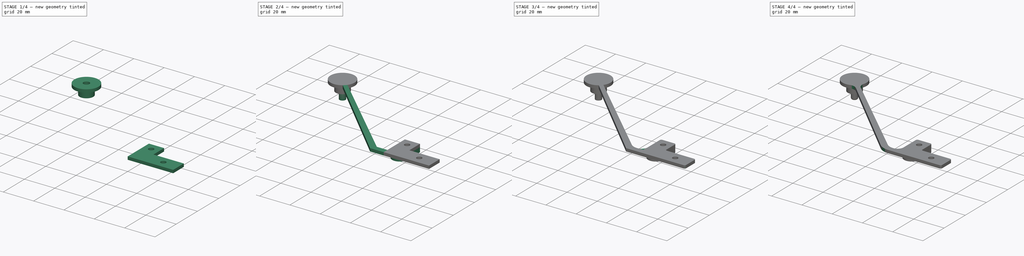
[diagram: build sequence overview — one tinted view per stage of 4, left to right]
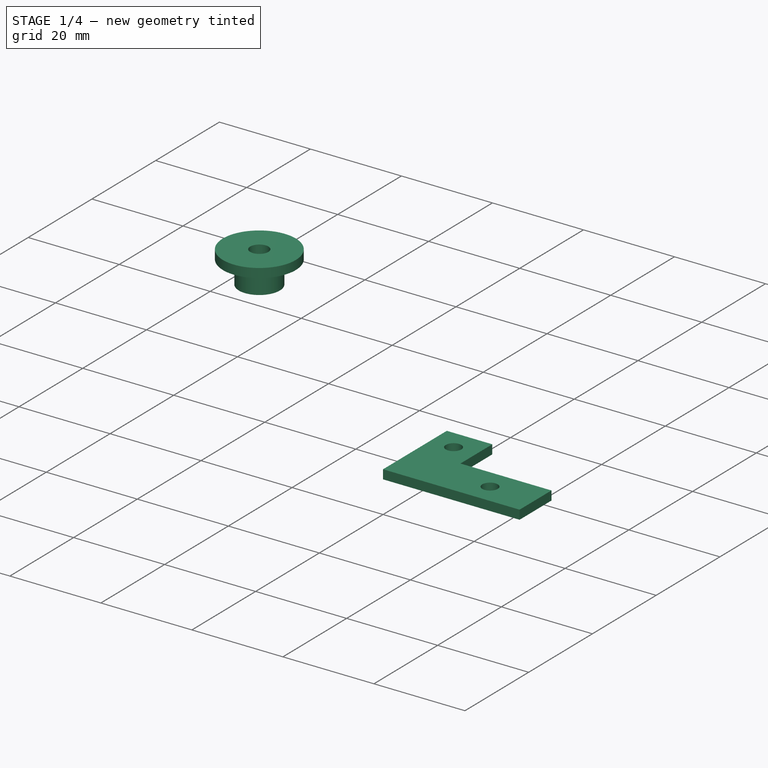
[diagram: stage 1 of 4 — iso view after this stage's code; geometry added in this stage tinted green]
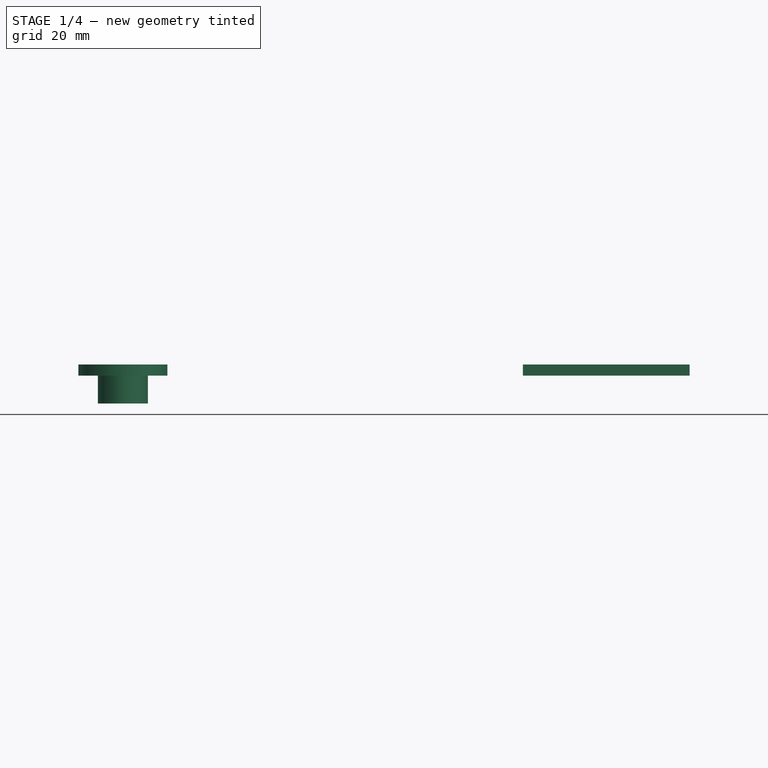
[diagram: stage 1 of 4 — front view after this stage's code; geometry added in this stage tinted green]
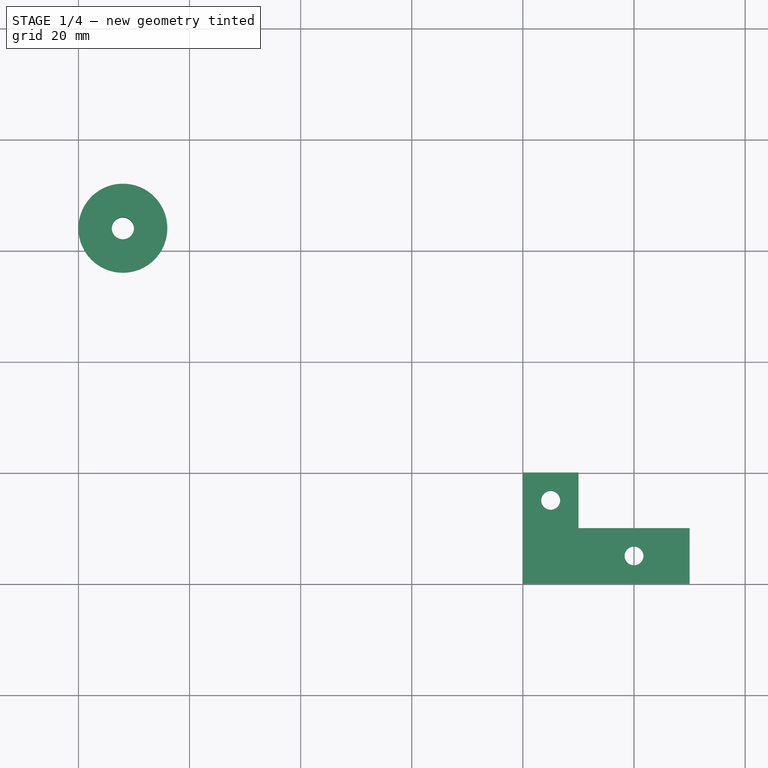
[diagram: stage 1 of 4 — top view after this stage's code; geometry added in this stage tinted green]
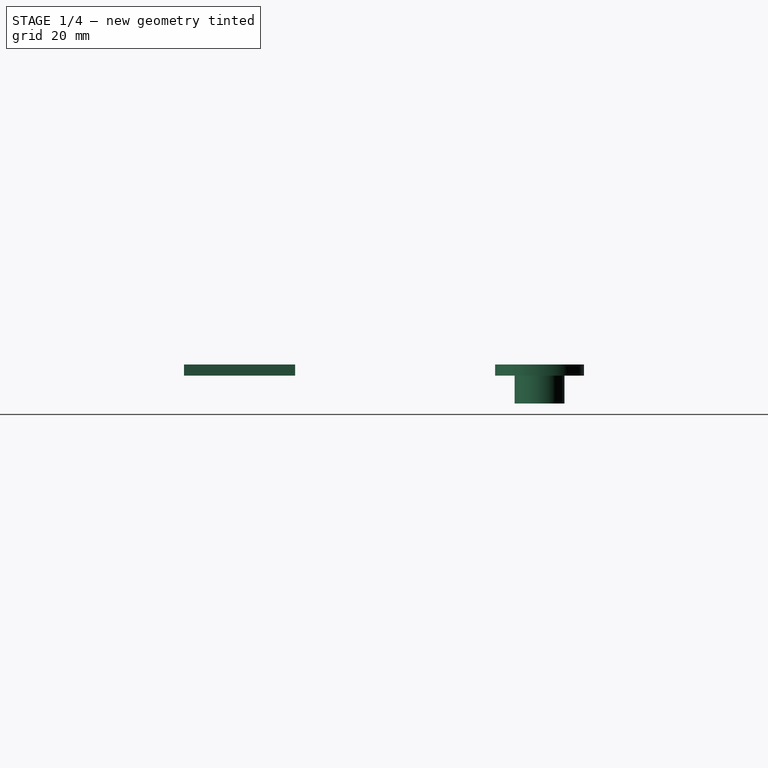
[diagram: stage 1 of 4 — right view after this stage's code; geometry added in this stage tinted green]
FCSTD DOCUMENT  (FreeCAD 0.21R33668 +26 (Git))
Label: Tensioner
License: All rights reserved
LicenseURL: http://en.wikipedia.org/wiki/All_rights_reserved
objects: PartDesign::Fillet×7, Sketcher::SketchObject×6, PartDesign::Pad×6, PartDesign::Body×2, App::Part×1
note: 34 computed .brp shape members not serialized (recipe doc carries the construction recipe); baked Part::Feature solids carry a one-line shape summary decoded from their .brp

FEATURE [Sketcher::SketchObject] Sketch
  FullyConstrained = false
  MapMode = 5
  Support = -> [XY_Plane001]
  sketch-geometry (8):
    g0: LineSegment StartX=0 StartY=0 StartZ=0 EndX=30 EndY=0 EndZ=0
    g1: LineSegment StartX=30 StartY=0 StartZ=0 EndX=30 EndY=10 EndZ=0
    g2: LineSegment StartX=0 StartY=20 StartZ=0 EndX=0 EndY=0 EndZ=0
    g3: LineSegment StartX=30 StartY=10 StartZ=0 EndX=10 EndY=10 EndZ=0
    g4: LineSegment StartX=10 StartY=10 StartZ=0 EndX=10 EndY=20 EndZ=0
    g5: LineSegment StartX=10 StartY=20 StartZ=0 EndX=0 EndY=20 EndZ=0
    g6: Circle CenterX=20 CenterY=5 CenterZ=0 NormalX=0 NormalY=0 NormalZ=1 AngleXU=0 Radius=1.7
    g7: Circle CenterX=5 CenterY=15 CenterZ=0 NormalX=0 NormalY=0 NormalZ=1 AngleXU=0 Radius=1.7
  constraints (23):
    c: Coincident(g0,g1)
    c: Coincident(g2,g0)
    c: Horizontal(g0)
    c: Vertical(g1)
    c: Vertical(g2)
    c: Coincident(g0,g-1)
    c: DistanceX(g-1,g0) = 30
    c: Coincident(g3,g1)
    c: Horizontal(g3)
    c: Coincident(g4,g3)
    c: Vertical(g4)
    c: Coincident(g5,g2)
    c: Horizontal(g5)
    c: DistanceY(g-1,g1) = 10
    c: DistanceY(g-1,g2) = 20
    c: Coincident(g4,g5)
    c: DistanceX(g-1,g6) = 20
    c: DistanceY(g-1,g6) = 5
    c: Radius(g6) = 1.7
    c: DistanceY(g-1,g7) = 15
    c: DistanceX(g-1,g7) = 5
    c: Radius(g7) = 1.7
    c: DistanceX(g-1,g4) = 10
FEATURE [PartDesign::Pad] Pad
  AllowMultiFace = false
  Direction = (1,1,1)
  Length = 2
  Length2 = 100
  Profile = -> Sketch
  Type = 0
FEATURE [PartDesign::Body] Pad004Body  label="Main"
  Group = -> [Sketch,Pad,Sketch001,Pad001,Sketch003,Pad003,Sketch004,Pad004,Fillet,Fillet001,Fillet002,Fillet003,Fillet004,Fillet005,Fillet006]
  Origin = -> Origin001
  Tip = -> Fillet006
FEATURE [Sketcher::SketchObject] Sketch005
  FullyConstrained = false
  MapMode = 5
  Support = -> [XY_Plane002]
  sketch-geometry (2):
    g0: Circle CenterX=-72 CenterY=64 CenterZ=0 NormalX=0 NormalY=0 NormalZ=1 AngleXU=0 Radius=8
    g1: Circle CenterX=-72 CenterY=64 CenterZ=0 NormalX=0 NormalY=0 NormalZ=1 AngleXU=0 Radius=2
  constraints (5):
    c: DistanceY(g-1,g0) = 64
    c: DistanceX(g0,g-1) = 72
    c: Coincident(g1,g0)
    c: Radius(g0) = 8
    c: Radius(g1) = 2
FEATURE [PartDesign::Pad] Pad005
  AllowMultiFace = false
  Direction = (1,1,1)
  Length = 2
  Length2 = 100
  Profile = -> Sketch005
  Type = 0
FEATURE [Sketcher::SketchObject] Sketch006
  ExternalGeometry = -> [Pad005]
  FullyConstrained = false
  MapMode = 5
  Placement = pos=(0,0,0) rot=(1,0,0;3.14159rad)
  Support = -> [Pad005]
  sketch-geometry (2):
    g0: Circle CenterX=-72 CenterY=-64 CenterZ=0 NormalX=0 NormalY=0 NormalZ=1 AngleXU=0 Radius=4.5
    g1: Circle CenterX=-72 CenterY=-64 CenterZ=0 NormalX=0 NormalY=0 NormalZ=1 AngleXU=0 Radius=2
  constraints (4):
    c: Coincident(g0,g-3)
    c: Radius(g0) = 4.5
    c: Coincident(g1,g0)
    c: Radius(g1) = 2
FEATURE [PartDesign::Pad] Pad006
  AllowMultiFace = false
  BaseFeature = -> Pad005
  Direction = (1,1,1)
  Length = 5
  Length2 = 100
  Profile = -> Sketch006
  Type = 0
FEATURE [PartDesign::Body] Body  label="Cover"
  Group = -> [Sketch005,Pad005,Sketch006,Pad006]
  Origin = -> Origin002
  Placement = pos=(0,0,-5) rot=(0,0,1;0rad)
  Tip = -> Pad006
FEATURE [App::Part] Part
  Group = -> [Pad004Body,Body]
  License = CC BY 3.0
  LicenseURL = http://creativecommons.org/licenses/by/3.0/
  Origin = -> Origin
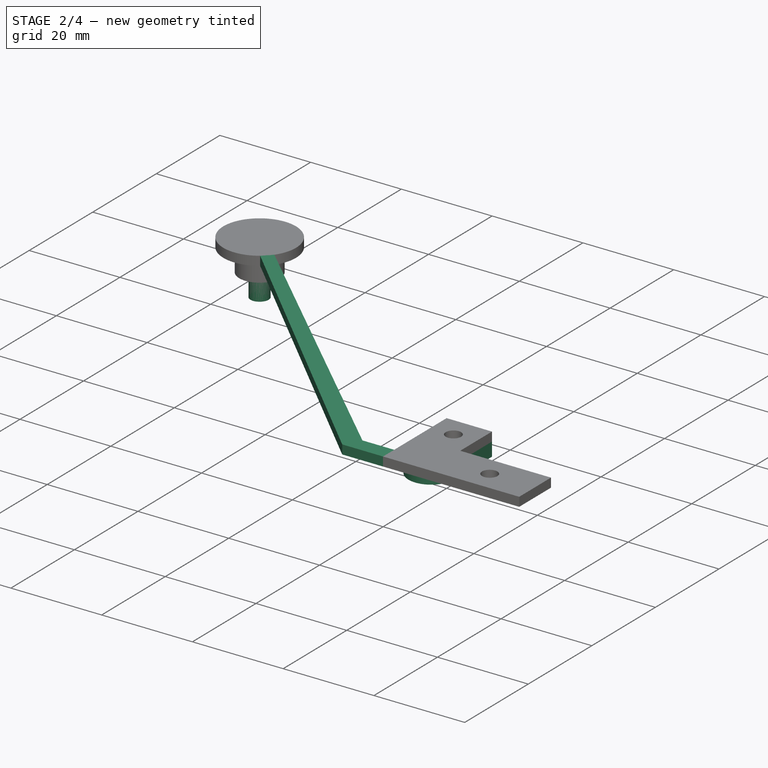
[diagram: stage 2 of 4 — iso view after this stage's code; geometry added in this stage tinted green]
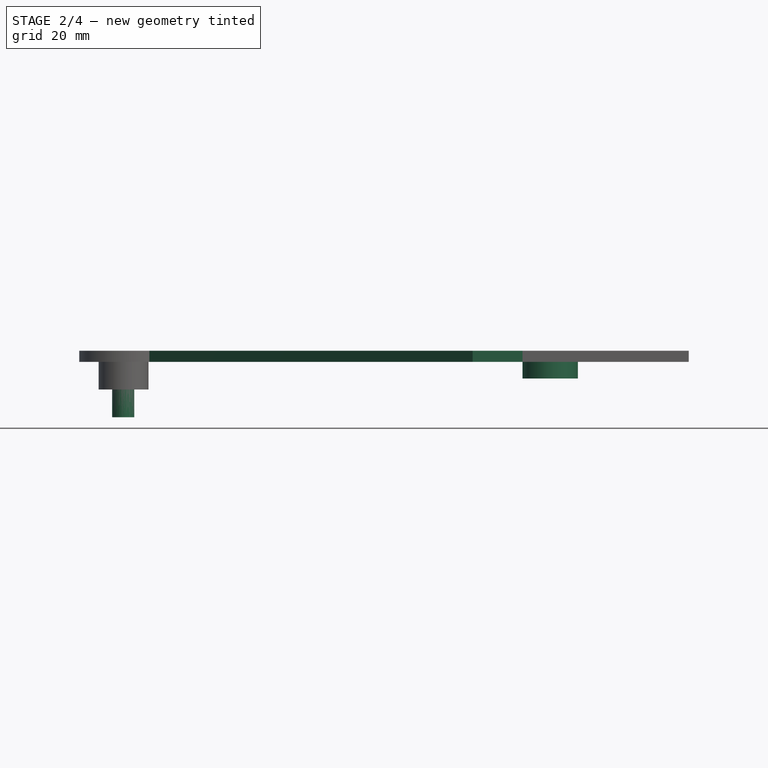
[diagram: stage 2 of 4 — front view after this stage's code; geometry added in this stage tinted green]
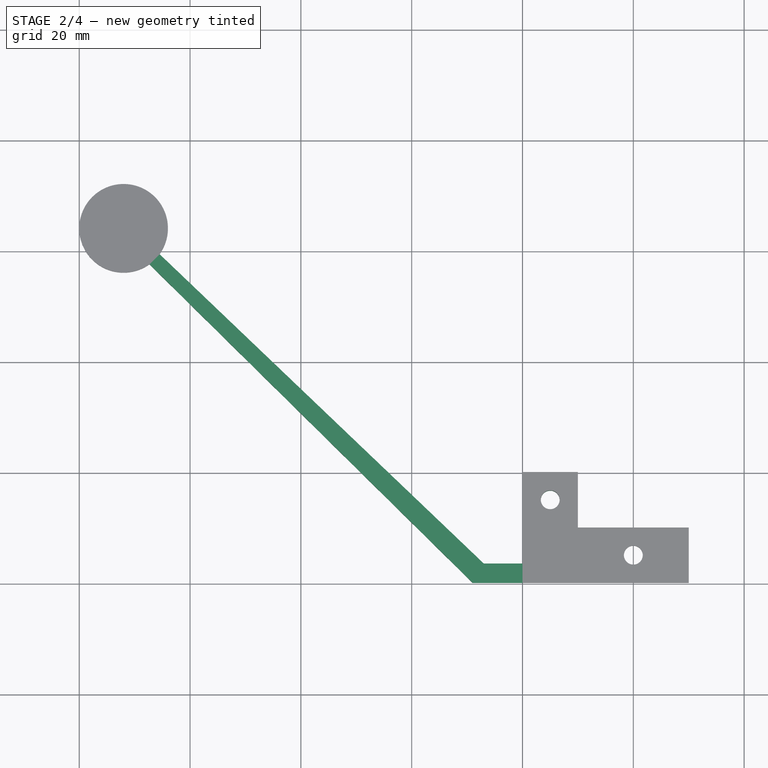
[diagram: stage 2 of 4 — top view after this stage's code; geometry added in this stage tinted green]
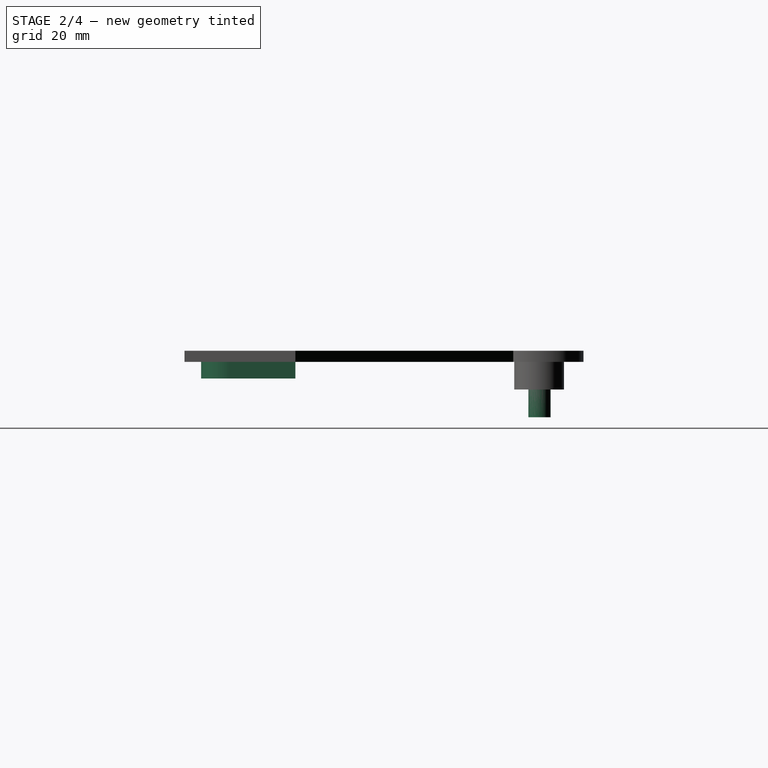
[diagram: stage 2 of 4 — right view after this stage's code; geometry added in this stage tinted green]
FEATURE [Sketcher::SketchObject] Sketch001
  FullyConstrained = false
  MapMode = 5
  Placement = pos=(0,0,0) rot=(1,0,0;3.14159rad)
  Support = -> [Pad]
  sketch-geometry (5):
    g0: ArcOfCircle CenterX=5 CenterY=-8 CenterZ=0 NormalX=0 NormalY=0 NormalZ=1 AngleXU=0 Radius=5 StartAngle=6.28285 EndAngle=9.42478
    g1: LineSegment StartX=10 StartY=-8.00166 StartZ=0 EndX=9.99602 EndY=-20 EndZ=0
    g2: LineSegment StartX=9.99602 StartY=-20 StartZ=0 EndX=2.70006e-11 EndY=-20 EndZ=0
    g3: LineSegment StartX=2.7e-11 StartY=-20 StartZ=0 EndX=2.7e-11 EndY=-8.00002 EndZ=0
    g4: Circle CenterX=5 CenterY=-15 CenterZ=0 NormalX=0 NormalY=0 NormalZ=1 AngleXU=0 Radius=1.7
  constraints (13):
    c: Radius(g0) = 5
    c: Tangent(g0,g1) = 1.5708
    c: Coincident(g1,g2)
    c: Horizontal(g2)
    c: Coincident(g2,g3)
    c: Coincident(g3,g0)
    c: Tangent(g3,g0)
    c: DistanceX(g-1,g0) = 5
    c: DistanceY(g0,g-1) = 8
    c: Vertical(g3)
    c: Radius(g4) = 1.7
    c: DistanceY(g4,g-1) = 15
    c: DistanceX(g-1,g4) = 5
FEATURE [PartDesign::Pad] Pad001
  AllowMultiFace = false
  BaseFeature = -> Pad
  Direction = (1,1,1)
  Length = 3
  Length2 = 100
  Profile = -> Sketch001
  Type = 0
FEATURE [Sketcher::SketchObject] Sketch003
  FullyConstrained = false
  MapMode = 5
  Placement = pos=(0,0,2) rot=(0,0,1;0rad)
  Support = -> [Pad001]
  sketch-geometry (6):
    g0: LineSegment StartX=0 StartY=0 StartZ=0 EndX=-9 EndY=0 EndZ=0
    g1: LineSegment StartX=-9 StartY=0 StartZ=0 EndX=-67.3363 EndY=57.5 EndZ=0
    g2: LineSegment StartX=0 StartY=0 StartZ=0 EndX=0 EndY=3.5 EndZ=0
    g3: LineSegment StartX=0 StartY=3.5 StartZ=0 EndX=-7 EndY=3.5 EndZ=0
    g4: LineSegment StartX=-7 StartY=3.5 StartZ=0 EndX=-65.5 EndY=59.3363 EndZ=0
    g5: ArcOfCircle CenterX=-72 CenterY=64 CenterZ=0 NormalX=0 NormalY=0 NormalZ=1 AngleXU=0 Radius=8 StartAngle=5.66082 EndAngle=11.6179
  constraints (18):
    c: PointOnObject(g0,g-2)
    c: Horizontal(g0)
    c: Coincident(g0,g1)
    c: Coincident(g0,g2)
    c: Vertical(g2)
    c: Coincident(g2,g3)
    c: Coincident(g3,g4)
    c: DistanceX(g3,g-1) = 7
    c: DistanceY(g-1,g3) = 3.5
    c: Horizontal(g3)
    c: DistanceX(g0,g-1) = 9
    c: Coincident(g5,g1)
    c: Coincident(g4,g5)
    c: Radius(g5) = 8
    c: DistanceX(g5,g-1) = 72
    c: DistanceY(g-1,g5) = 64
    c: DistanceX(g4,g-1) = 65.5
    c: DistanceY(g-1,g1) = 57.5
FEATURE [PartDesign::Pad] Pad003
  AllowMultiFace = false
  BaseFeature = -> Pad001
  Direction = (1,1,1)
  Length = 2
  Length2 = 10
  Profile = -> Sketch003
  Reversed = true
  Type = 0
FEATURE [Sketcher::SketchObject] Sketch004
  ExternalGeometry = -> [Pad003]
  FullyConstrained = false
  MapMode = 5
  Placement = pos=(0,0,0) rot=(1,0,0;3.14159rad)
  Support = -> [Pad003]
  sketch-geometry (1):
    g0: Circle CenterX=-72.0678 CenterY=-64.0678 CenterZ=0 NormalX=0 NormalY=0 NormalZ=1 AngleXU=0 Radius=2
  constraints (1):
    c: Radius(g0) = 2
FEATURE [PartDesign::Pad] Pad004
  AllowMultiFace = false
  BaseFeature = -> Pad003
  Direction = (1,1,1)
  Length = 10
  Length2 = 100
  Profile = -> Sketch004
  Type = 0
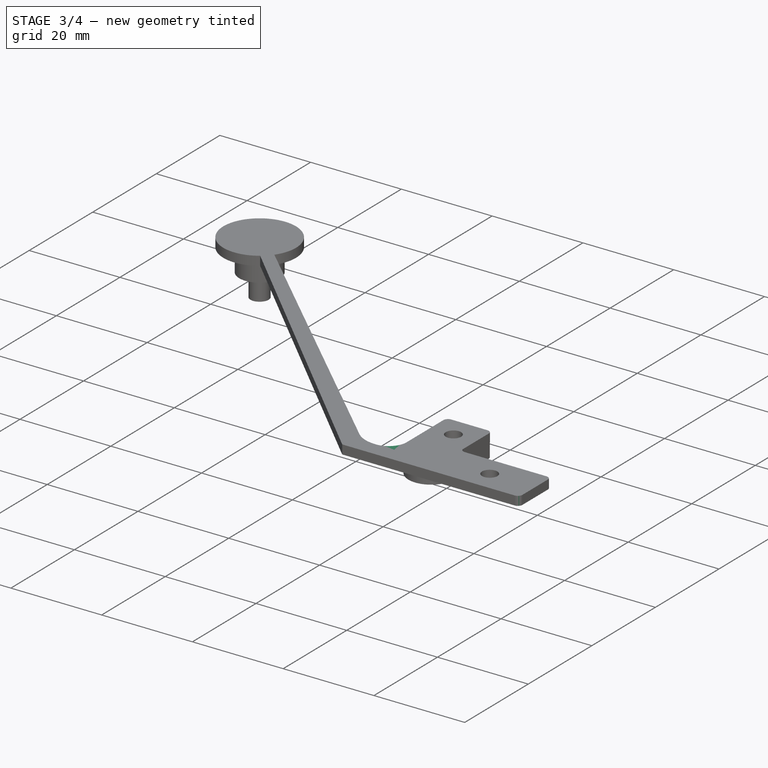
[diagram: stage 3 of 4 — iso view after this stage's code; geometry added in this stage tinted green]
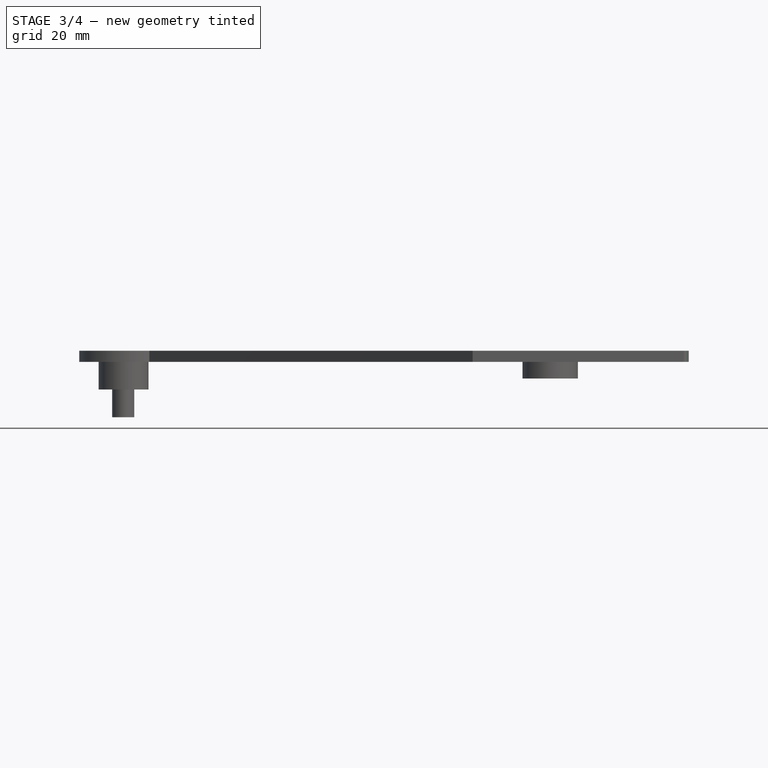
[diagram: stage 3 of 4 — front view after this stage's code; geometry added in this stage tinted green]
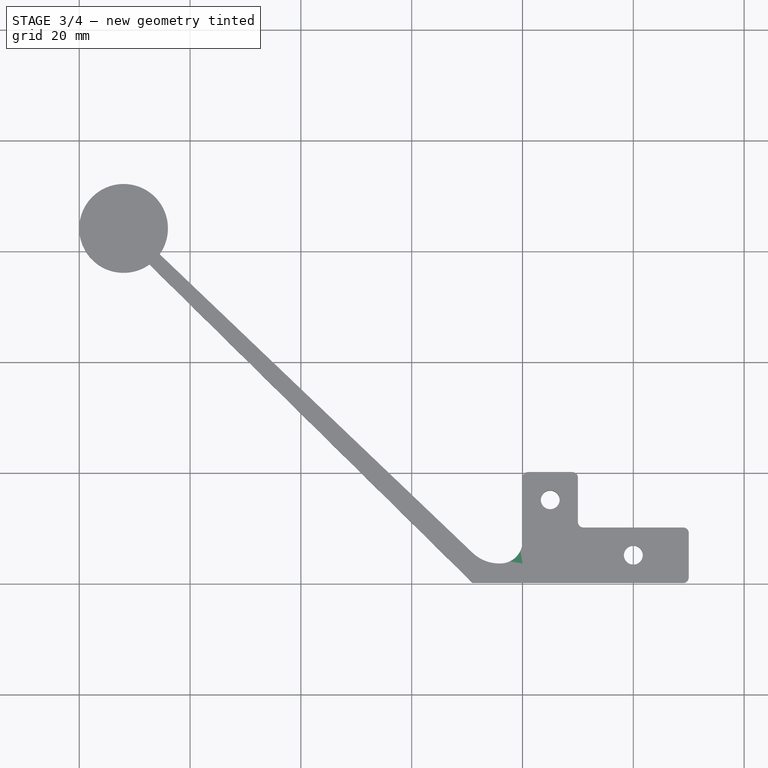
[diagram: stage 3 of 4 — top view after this stage's code; geometry added in this stage tinted green]
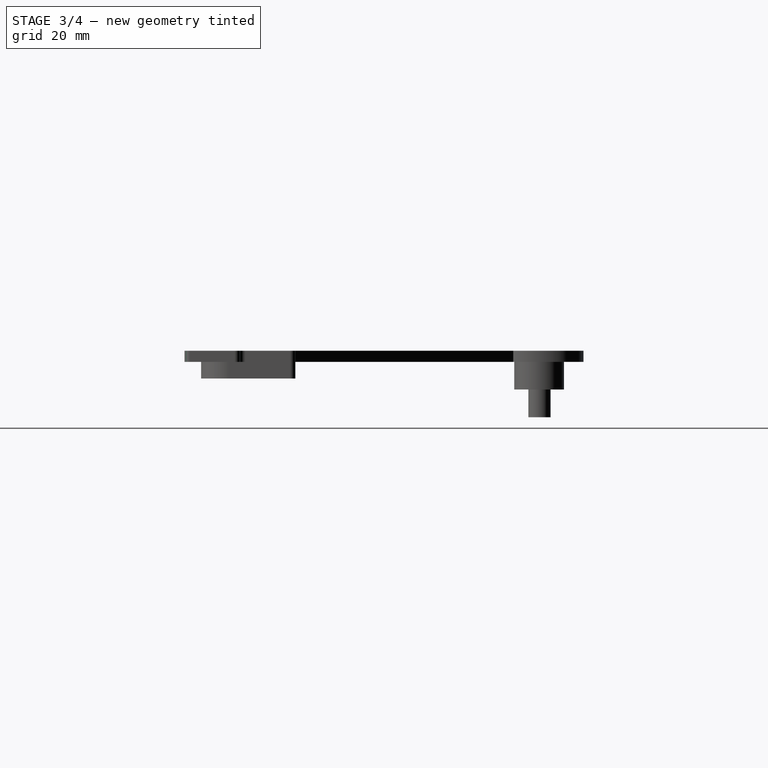
[diagram: stage 3 of 4 — right view after this stage's code; geometry added in this stage tinted green]
FEATURE [PartDesign::Fillet] Fillet
  Base = -> Pad004 [Edge40,Edge50]
  BaseFeature = -> Pad004
  Radius = 1
  SupportTransform = false
  UseAllEdges = false
FEATURE [PartDesign::Fillet] Fillet001
  Base = -> Fillet [Edge29,Edge36,Edge41,Edge40]
  BaseFeature = -> Fillet
  Radius = 1
  SupportTransform = false
  UseAllEdges = false
FEATURE [PartDesign::Fillet] Fillet002
  Base = -> Fillet001 [Edge32]
  BaseFeature = -> Fillet001
  Radius = 4
  SupportTransform = false
  UseAllEdges = false
FEATURE [PartDesign::Fillet] Fillet003
  Base = -> Fillet002 [Edge66]
  BaseFeature = -> Fillet002
  Radius = 7
  SupportTransform = false
  UseAllEdges = false
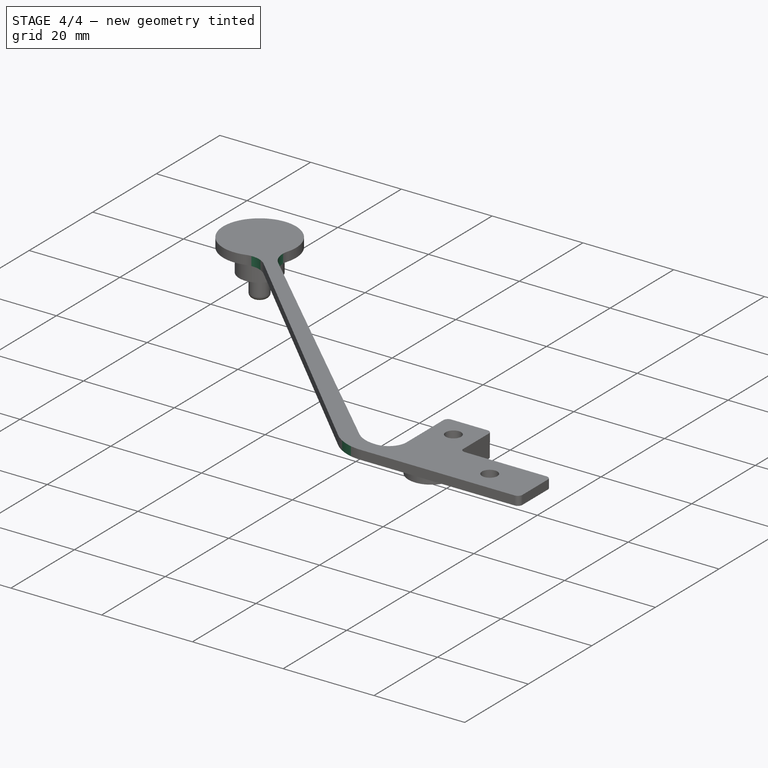
[diagram: stage 4 of 4 — iso view after this stage's code; geometry added in this stage tinted green]
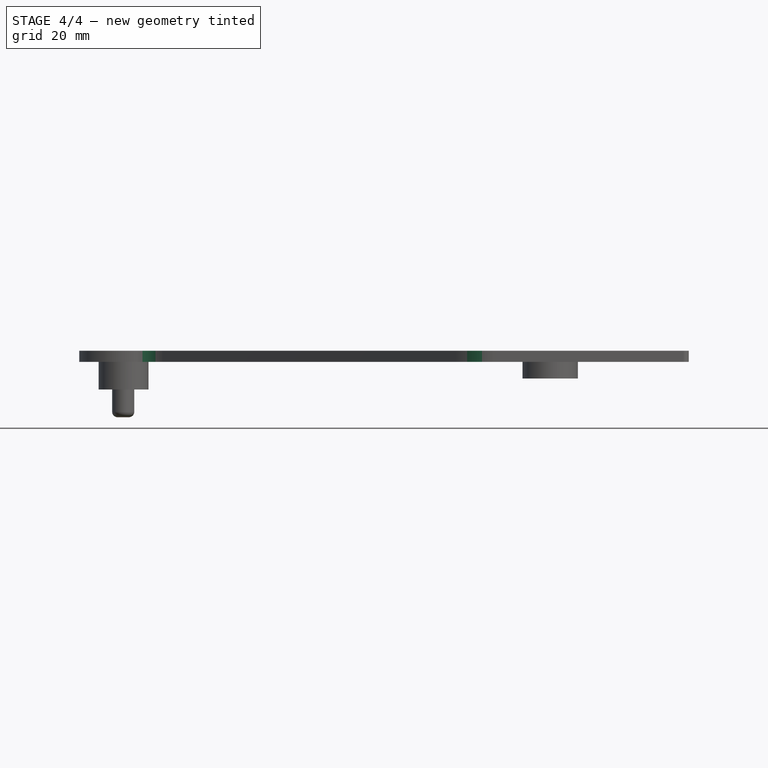
[diagram: stage 4 of 4 — front view after this stage's code; geometry added in this stage tinted green]
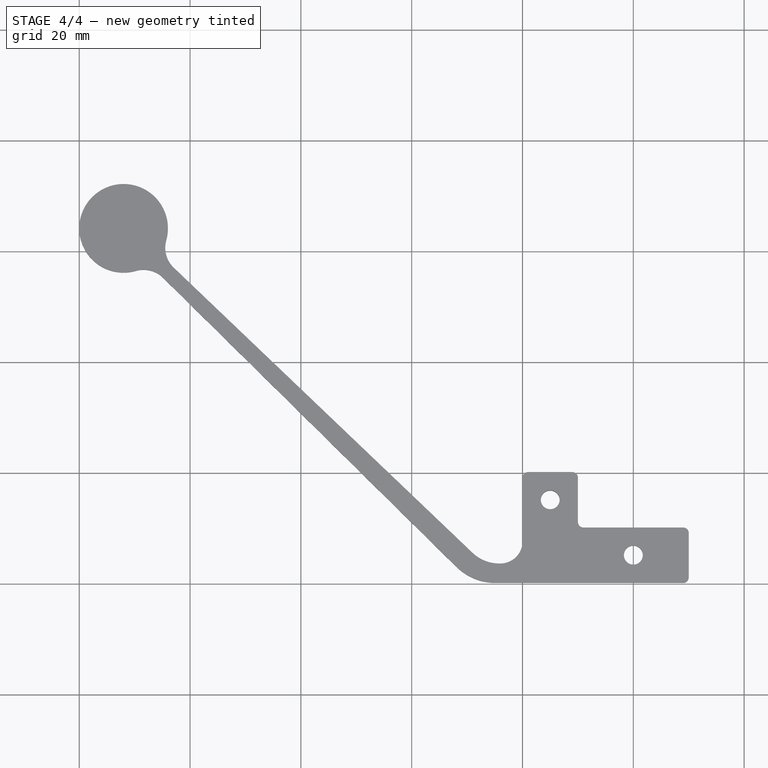
[diagram: stage 4 of 4 — top view after this stage's code; geometry added in this stage tinted green]
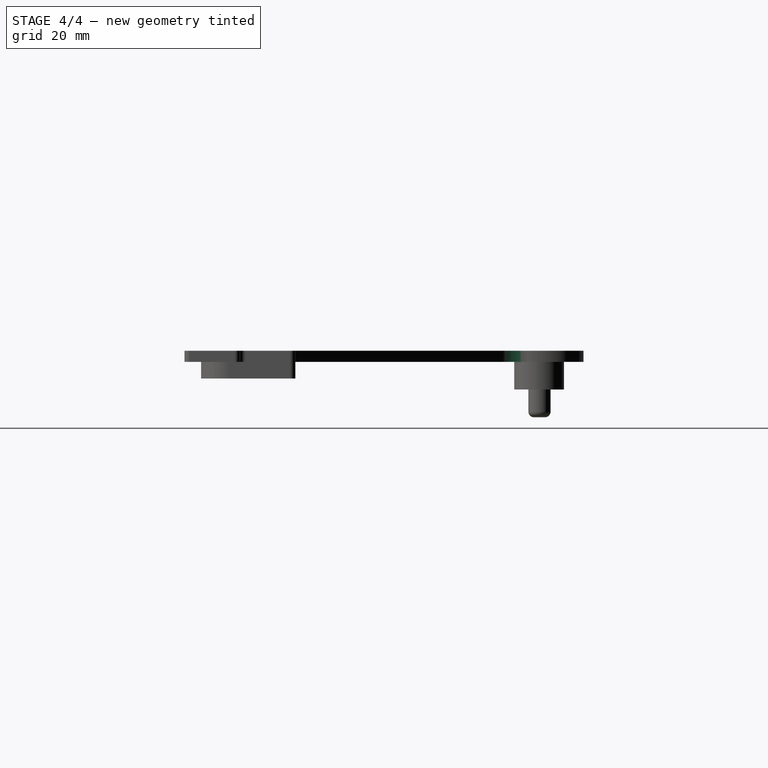
[diagram: stage 4 of 4 — right view after this stage's code; geometry added in this stage tinted green]
FEATURE [PartDesign::Fillet] Fillet004
  Base = -> Fillet003 [Edge36]
  BaseFeature = -> Fillet003
  Radius = 10
  SupportTransform = false
  UseAllEdges = false
FEATURE [PartDesign::Fillet] Fillet005
  Base = -> Fillet004 [Edge44]
  BaseFeature = -> Fillet004
  Radius = 1
  SupportTransform = false
  UseAllEdges = false
FEATURE [PartDesign::Fillet] Fillet006
  Base = -> Fillet005 [Edge21,Edge17]
  BaseFeature = -> Fillet005
  Radius = 5
  SupportTransform = false
  UseAllEdges = false
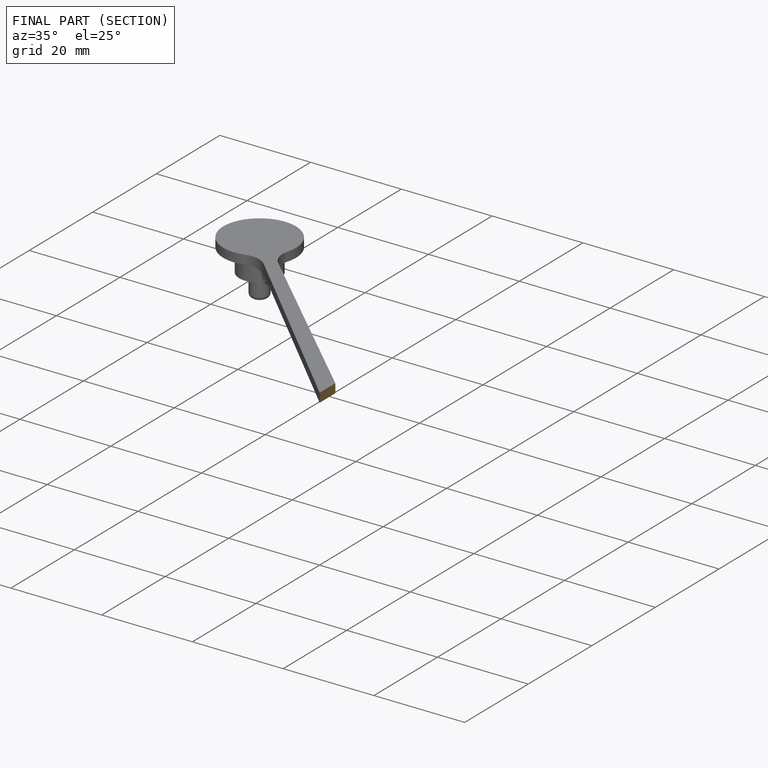
[diagram: finished part — half-section view (interior)]
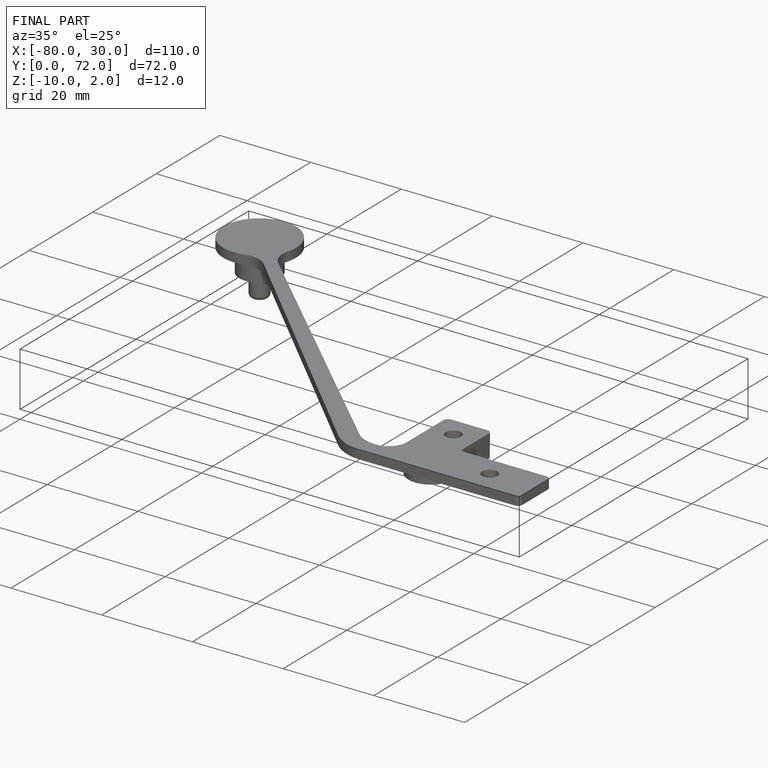
[diagram: finished part — iso view with bounding-box wireframe]
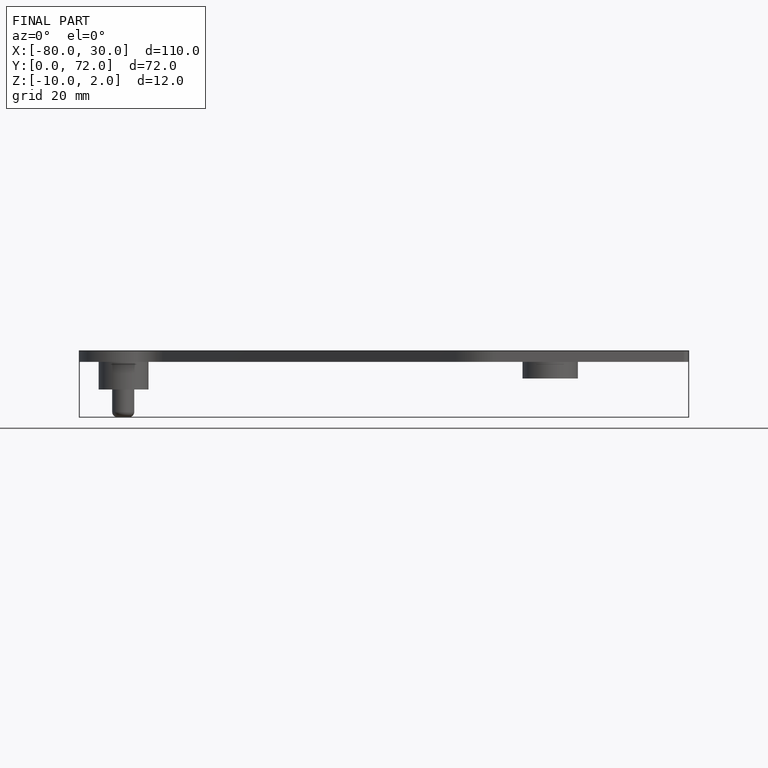
[diagram: finished part — front view with bounding-box wireframe]
